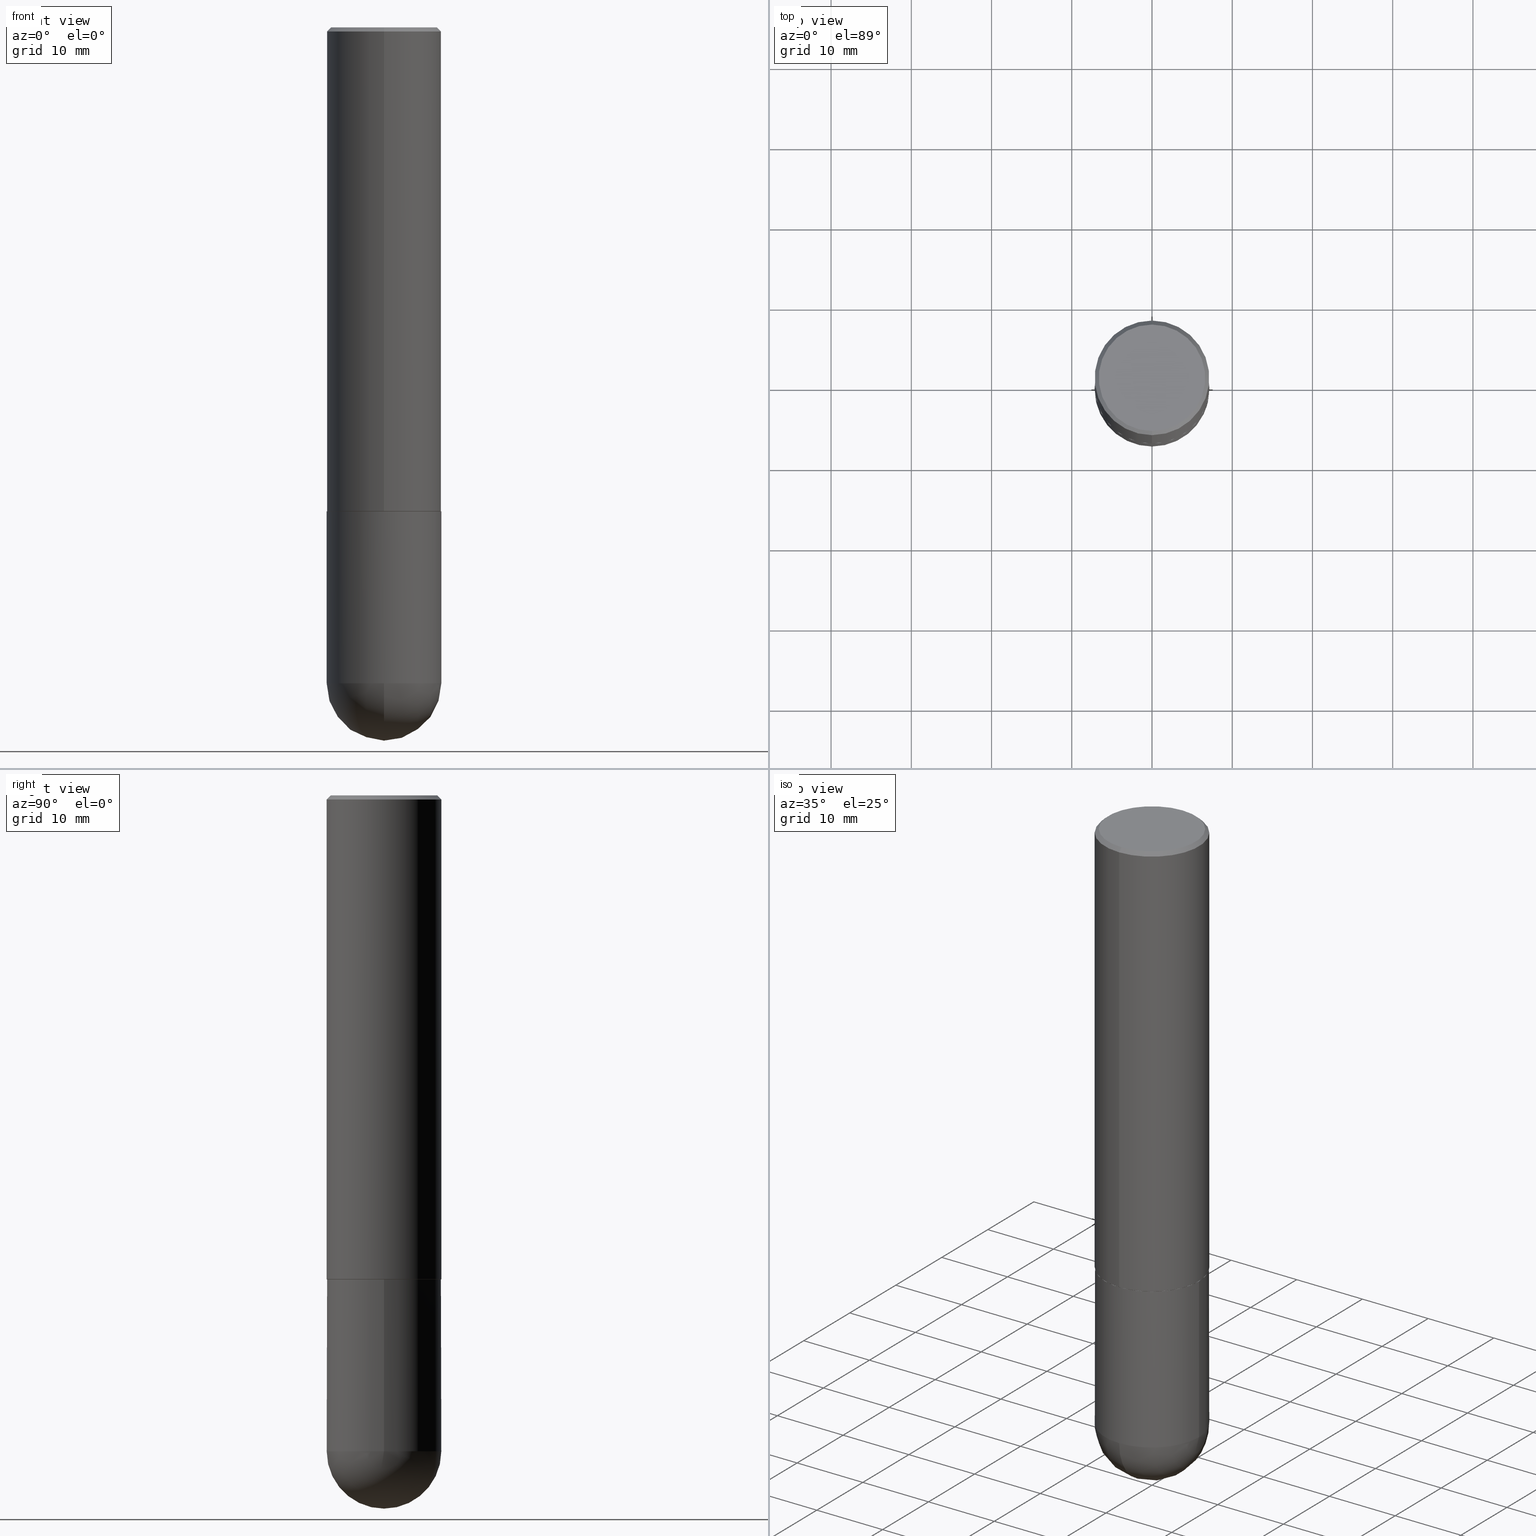
[diagram: canonical four-view strip — front | top / right | iso, engineering-drawing reading convention]
A machine part, canonical four-view strip (front | top / right | iso — engineering-drawing reading convention). The complete STEP part file that produces these views, byte-faithful:
ISO-10303-21;
HEADER;
FILE_DESCRIPTION (( 'STEP AP203' ),
    '1' );
FILE_NAME ('31162.STEP',
    '2024-02-21T16:49:02',
    ( '' ),
    ( '' ),
    'SwSTEP 2.0',
    'SolidWorks 2023',
    '' );
FILE_SCHEMA (( 'CONFIG_CONTROL_DESIGN' ));
ENDSEC;

DATA;
#1 = PERSON_AND_ORGANIZATION_ROLE ( 'design_supplier' ) ;
#2 = EDGE_CURVE ( 'NONE', #90, #55, #21, .T. ) ;
#3 = ORIENTED_EDGE ( 'NONE', *, *, #107, .F. ) ;
#4 = ADVANCED_FACE ( 'NONE', ( #151 ), #384, .T. ) ;
#5 = APPLICATION_PROTOCOL_DEFINITION ( 'international standard', 'config_control_design', 1994, #291 ) ;
#6 = DIRECTION ( 'NONE',  ( -6.982962677686266711E-15, -1.000000000000000000, 3.490694658571003593E-15 ) ) ;
#7 = APPROVAL ( #181, 'UNSPECIFIED' ) ;
#8 = CARTESIAN_POINT ( 'NONE',  ( 4.891942156115939858E-31, -6.981524113867461777E-17, -0.02000000000000006287 ) ) ;
#9 = VECTOR ( 'NONE', #208, 39.37007874015748143 ) ;
#10 = LOCAL_TIME ( 11, 49, 2.000000000000000000, #184 ) ;
#11 = CARTESIAN_POINT ( 'NONE',  ( -1.998401444325206042E-15, -0.2812500000000116573, -3.218749999999998668 ) ) ;
#12 = PRODUCT_DEFINITION_SHAPE ( 'NONE', 'NONE',  #361 ) ;
#13 = DIRECTION ( 'NONE',  ( -2.445468806185136597E-29, 3.491481338843145583E-15, 1.000000000000000000 ) ) ;
#14 = DIRECTION ( 'NONE',  ( -6.982962677686266711E-15, -1.000000000000000000, 3.490694658571003593E-15 ) ) ;
#15 = SECURITY_CLASSIFICATION ( '', '', #313 ) ;
#16 = CARTESIAN_POINT ( 'NONE',  ( 5.809181310387659224E-29, -8.290559885217581626E-15, -2.374999999999999556 ) ) ;
#17 = ADVANCED_FACE ( 'NONE', ( #88 ), #316, .T. ) ;
#18 = CARTESIAN_POINT ( 'NONE',  ( -1.929515061873242463E-15, -0.2812500000000000555, -0.01999999999999908101 ) ) ;
#19 = CARTESIAN_POINT ( 'NONE',  ( 4.891942156115939858E-31, -6.981524113867461777E-17, -0.02000000000000006287 ) ) ;
#20 = VERTEX_POINT ( 'NONE', #33 ) ;
#21 = CIRCLE ( 'NONE', #119, 0.2812499999999999445 ) ;
#22 = PRODUCT_DEFINITION_FORMATION_WITH_SPECIFIED_SOURCE ( 'ANY', '', #354, .NOT_KNOWN. ) ;
#23 = FACE_OUTER_BOUND ( 'NONE', #250, .T. ) ;
#24 = LOCAL_TIME ( 11, 49, 2.000000000000000000, #120 ) ;
#25 = CARTESIAN_POINT ( 'NONE',  ( 1.894128626322399214E-15, 0.2612499999999998157, -7.840941250697587073E-16 ) ) ;
#26 = DIRECTION ( 'NONE',  ( 4.937700262164543309E-15, 0.7071067811865444641, -0.7071067811865503483 ) ) ;
#27 = VERTEX_POINT ( 'NONE', #286 ) ;
#28 = VECTOR ( 'NONE', #81, 39.37007874015748143 ) ;
#29 = ORIENTED_EDGE ( 'NONE', *, *, #324, .T. ) ;
#30 = PERSON_AND_ORGANIZATION_ROLE ( 'classification_officer' ) ;
#31 = CARTESIAN_POINT ( 'NONE',  ( 0.000000000000000000, 0.000000000000000000, 0.000000000000000000 ) ) ;
#32 = DATE_TIME_ROLE ( 'classification_date' ) ;
#33 = CARTESIAN_POINT ( 'NONE',  ( -1.860910081895526737E-15, -0.2612499999999998157, 1.039829049678108414E-15 ) ) ;
#34 = EDGE_CURVE ( 'NONE', #411, #125, #171, .T. ) ;
#35 = DATE_AND_TIME ( #59, #10 ) ;
#36 = ORIENTED_EDGE ( 'NONE', *, *, #210, .F. ) ;
#37 = AXIS2_PLACEMENT_3D ( 'NONE', #236, #199, #79 ) ;
#38 = EDGE_LOOP ( 'NONE', ( #344, #252 ) ) ;
#39 = PLANE ( 'NONE',  #172 ) ;
#40 = DIRECTION ( 'NONE',  ( 1.000000000000000000, -6.982962677686269866E-15, 0.000000000000000000 ) ) ;
#41 = ADVANCED_FACE ( 'NONE', ( #349 ), #132, .T. ) ;
#42 = AXIS2_PLACEMENT_3D ( 'NONE', #85, #211, #104 ) ;
#43 = LOCAL_TIME ( 11, 49, 2.000000000000000000, #281 ) ;
#44 = APPROVAL_ROLE ( '' ) ;
#45 = DIRECTION ( 'NONE',  ( -6.982962677686265133E-15, -1.000000000000000000, 3.885294924322504533E-15 ) ) ;
#46 = DIRECTION ( 'NONE',  ( -2.445468806185136597E-29, 3.491481338843145583E-15, 1.000000000000000000 ) ) ;
#47 = CARTESIAN_POINT ( 'NONE',  ( 0.2812500000000000555, -1.963958253099262907E-15, 1.371424718192607012E-29 ) ) ;
#48 = CC_DESIGN_DATE_AND_TIME_ASSIGNMENT ( #87, #372, ( #361 ) ) ;
#49 = DIRECTION ( 'NONE',  ( -2.445468806185136597E-29, 3.491481338843145583E-15, 1.000000000000000000 ) ) ;
#50 = FACE_OUTER_BOUND ( 'NONE', #255, .T. ) ;
#51 = EDGE_CURVE ( 'NONE', #411, #319, #69, .T. ) ;
#52 = CYLINDRICAL_SURFACE ( 'NONE', #195, 0.2812500000000001110 ) ;
#53 = VECTOR ( 'NONE', #365, 39.37007874015748143 ) ;
#54 = DIRECTION ( 'NONE',  ( 6.982962677686266711E-15, 1.000000000000000000, -3.490694658571003593E-15 ) ) ;
#55 = VERTEX_POINT ( 'NONE', #292 ) ;
#56 = CARTESIAN_POINT ( 'NONE',  ( -1.963958253099263301E-15, -0.2812500000000001110, 9.817768285126090044E-16 ) ) ;
#57 = LENGTH_MEASURE_WITH_UNIT ( LENGTH_MEASURE( 0.02539999999999999897 ), #343 );
#58 = EDGE_CURVE ( 'NONE', #374, #209, #139, .T. ) ;
#59 = CALENDAR_DATE ( 2024, 21, 2 ) ;
#60 = AXIS2_PLACEMENT_3D ( 'NONE', #277, #49, #166 ) ;
#61 = ORIENTED_EDGE ( 'NONE', *, *, #329, .F. ) ;
#62 = COORDINATED_UNIVERSAL_TIME_OFFSET ( 5, 0, .BEHIND. ) ;
#63 = CARTESIAN_POINT ( 'NONE',  ( 4.891942156115939858E-31, -6.981524113867461777E-17, -0.02000000000000006287 ) ) ;
#64 = EDGE_CURVE ( 'NONE', #55, #90, #364, .T. ) ;
#65 = DIRECTION ( 'NONE',  ( -4.851104656540959542E-15, -0.7071067811865493491, -0.7071067811865454633 ) ) ;
#66 = CARTESIAN_POINT ( 'NONE',  ( 7.540232941994521053E-29, -1.171238792754142562E-14, -3.218749999999999556 ) ) ;
#67 = ORIENTED_EDGE ( 'NONE', *, *, #218, .F. ) ;
#68 = AXIS2_PLACEMENT_3D ( 'NONE', #134, #367, #175 ) ;
#69 = LINE ( 'NONE', #163, #299 ) ;
#70 = DIRECTION ( 'NONE',  ( -6.982962677686265922E-15, -1.000000000000000000, 3.899158599342391639E-15 ) ) ;
#71 = CC_DESIGN_PERSON_AND_ORGANIZATION_ASSIGNMENT ( #405, #1, ( #22 ) ) ;
#72 = DIRECTION ( 'NONE',  ( -2.445971078057962310E-29, 3.490762056933719721E-15, 1.000000000000000000 ) ) ;
#73 = AXIS2_PLACEMENT_3D ( 'NONE', #243, #335, #370 ) ;
#74 = CARTESIAN_POINT ( 'NONE',  ( 5.806735339309601077E-29, -8.287069123160647874E-15, -2.373999999999999222 ) ) ;
#75 = EDGE_CURVE ( 'NONE', #146, #138, #131, .T. ) ;
#76 = CARTESIAN_POINT ( 'NONE',  ( 5.809181310387659224E-29, -8.290559885217581626E-15, -2.374999999999999556 ) ) ;
#77 = CARTESIAN_POINT ( 'NONE',  ( 1.998401444325312144E-15, 0.2812499999999919509, -2.374000000000000554 ) ) ;
#78 = AXIS2_PLACEMENT_3D ( 'NONE', #108, #276, #338 ) ;
#79 = DIRECTION ( 'NONE',  ( 1.000000000000000000, -6.982962677686268288E-15, 0.000000000000000000 ) ) ;
#80 = EDGE_LOOP ( 'NONE', ( #135, #314, #200, #247 ) ) ;
#81 = DIRECTION ( 'NONE',  ( -2.445971078057962310E-29, 3.490762056933720116E-15, 1.000000000000000000 ) ) ;
#82 = ORIENTED_EDGE ( 'NONE', *, *, #167, .F. ) ;
#83 = AXIS2_PLACEMENT_3D ( 'NONE', #122, #253, #380 ) ;
#84 =( GEOMETRIC_REPRESENTATION_CONTEXT ( 3 ) GLOBAL_UNCERTAINTY_ASSIGNED_CONTEXT ( ( #201 ) ) GLOBAL_UNIT_ASSIGNED_CONTEXT ( ( #123, #117, #93 ) ) REPRESENTATION_CONTEXT ( 'NONE', 'WORKASPACE' ) );
#85 = CARTESIAN_POINT ( 'NONE',  ( 5.809181310387659224E-29, -8.290559885217581626E-15, -2.374999999999999556 ) ) ;
#86 = APPROVAL_ROLE ( '' ) ;
#87 = DATE_AND_TIME ( #249, #43 ) ;
#88 = FACE_OUTER_BOUND ( 'NONE', #278, .T. ) ;
#89 = PERSON_AND_ORGANIZATION ( #274, #404 ) ;
#90 = VERTEX_POINT ( 'NONE', #301 ) ;
#91 = CALENDAR_DATE ( 2024, 21, 2 ) ;
#92 = ORIENTED_EDGE ( 'NONE', *, *, #64, .F. ) ;
#93 =( NAMED_UNIT ( * ) SI_UNIT ( $, .STERADIAN. ) SOLID_ANGLE_UNIT ( ) );
#94 = ORIENTED_EDGE ( 'NONE', *, *, #64, .T. ) ;
#95 = EDGE_LOOP ( 'NONE', ( #212, #115, #347, #61 ) ) ;
#96 = DIRECTION ( 'NONE',  ( 1.000000000000000000, -6.982962677686268288E-15, 0.000000000000000000 ) ) ;
#97 = DIRECTION ( 'NONE',  ( 6.982962677686265133E-15, 1.000000000000000000, 0.000000000000000000 ) ) ;
#98 = DIRECTION ( 'NONE',  ( -6.982962677686265133E-15, -1.000000000000000000, 3.885294924322504533E-15 ) ) ;
#99 = CLOSED_SHELL ( 'NONE', ( #259, #17, #183, #369, #244, #173, #352, #293 ) ) ;
#100 = EDGE_CURVE ( 'NONE', #125, #303, #264, .T. ) ;
#101 = CIRCLE ( 'NONE', #214, 0.2812500000000002220 ) ;
#102 = CARTESIAN_POINT ( 'NONE',  ( 5.807988414689698296E-29, -8.292268179752468540E-15, -2.374999999999999556 ) ) ;
#103 = DIRECTION ( 'NONE',  ( -2.445468806185136877E-29, 3.491481338843145188E-15, 1.000000000000000000 ) ) ;
#104 = DIRECTION ( 'NONE',  ( -6.982962677686265922E-15, -1.000000000000000000, 3.490762056933720116E-15 ) ) ;
#105 = ORIENTED_EDGE ( 'NONE', *, *, #340, .T. ) ;
#106 = VECTOR ( 'NONE', #65, 39.37007874015748854 ) ;
#107 = EDGE_CURVE ( 'NONE', #27, #368, #280, .T. ) ;
#108 = CARTESIAN_POINT ( 'NONE',  ( 7.540232941994521053E-29, -1.171238792754142562E-14, -3.218749999999999556 ) ) ;
#109 = ORIENTED_EDGE ( 'NONE', *, *, #58, .F. ) ;
#110 = FACE_OUTER_BOUND ( 'NONE', #290, .T. ) ;
#111 = FACE_OUTER_BOUND ( 'NONE', #176, .T. ) ;
#112 = ORIENTED_EDGE ( 'NONE', *, *, #190, .T. ) ;
#113 = CIRCLE ( 'NONE', #308, 0.2612499999999998157 ) ;
#114 = CARTESIAN_POINT ( 'NONE',  ( 7.871352719908407300E-29, -1.123820555940137375E-14, -3.218749999999999556 ) ) ;
#115 = ORIENTED_EDGE ( 'NONE', *, *, #407, .T. ) ;
#116 = ORIENTED_EDGE ( 'NONE', *, *, #75, .T. ) ;
#117 =( NAMED_UNIT ( * ) PLANE_ANGLE_UNIT ( ) SI_UNIT ( $, .RADIAN. ) );
#118 = ORIENTED_EDGE ( 'NONE', *, *, #193, .F. ) ;
#119 = AXIS2_PLACEMENT_3D ( 'NONE', #63, #251, #6 ) ;
#120 = COORDINATED_UNIVERSAL_TIME_OFFSET ( 5, 0, .BEHIND. ) ;
#121 = CIRCLE ( 'NONE', #287, 0.2612499999999998157 ) ;
#122 = CARTESIAN_POINT ( 'NONE',  ( 5.809181310387659224E-29, -8.290559885217581626E-15, -2.374999999999999556 ) ) ;
#123 =( CONVERSION_BASED_UNIT ( 'INCH', #57 ) LENGTH_UNIT ( ) NAMED_UNIT ( #136 ) );
#124 = ORIENTED_EDGE ( 'NONE', *, *, #227, .F. ) ;
#125 = VERTEX_POINT ( 'NONE', #325 ) ;
#126 = ADVANCED_FACE ( 'NONE', ( #393 ), #39, .F. ) ;
#127 = AXIS2_PLACEMENT_3D ( 'NONE', #330, #191, #161 ) ;
#128 = DIRECTION ( 'NONE',  ( -6.982962677686265133E-15, -1.000000000000000000, 3.490762056933719327E-15 ) ) ;
#129 = CC_DESIGN_APPROVAL ( #7, ( #22 ) ) ;
#130 = CARTESIAN_POINT ( 'NONE',  ( -3.127601146206782890E-45, 4.463548857278161624E-31, 1.278674623041748289E-16 ) ) ;
#131 = LINE ( 'NONE', #47, #179 ) ;
#132 = CYLINDRICAL_SURFACE ( 'NONE', #127, 0.2812500000000000555 ) ;
#133 = DIRECTION ( 'NONE',  ( -2.445971078057962310E-29, 3.490762056933719721E-15, 1.000000000000000000 ) ) ;
#134 = CARTESIAN_POINT ( 'NONE',  ( 7.540232941994521053E-29, -1.171238792754142562E-14, -3.218749999999999556 ) ) ;
#135 = ORIENTED_EDGE ( 'NONE', *, *, #51, .F. ) ;
#136 = DIMENSIONAL_EXPONENTS ( 1.000000000000000000, 0.000000000000000000, 0.000000000000000000, 0.000000000000000000, 0.000000000000000000, 0.000000000000000000, 0.000000000000000000 ) ;
#137 = DIRECTION ( 'NONE',  ( 2.445971078057962310E-29, -3.490762056933719721E-15, -1.000000000000000000 ) ) ;
#138 = VERTEX_POINT ( 'NONE', #389 ) ;
#139 = CIRCLE ( 'NONE', #270, 0.2812500000000000555 ) ;
#140 = APPROVAL_PERSON_ORGANIZATION ( #348, #402, #44 ) ;
#141 = CARTESIAN_POINT ( 'NONE',  ( 1.998401444325282167E-15, 0.2812500000000001110, -9.817768285126090044E-16 ) ) ;
#142 = LINE ( 'NONE', #334, #164 ) ;
#143 = EDGE_CURVE ( 'NONE', #20, #289, #121, .T. ) ;
#144 = ORIENTED_EDGE ( 'NONE', *, *, #329, .T. ) ;
#145 = CYLINDRICAL_SURFACE ( 'NONE', #60, 0.2812500000000000555 ) ;
#146 = VERTEX_POINT ( 'NONE', #157 ) ;
#147 = PERSON_AND_ORGANIZATION ( #274, #404 ) ;
#148 = ORIENTED_EDGE ( 'NONE', *, *, #317, .T. ) ;
#149 = ORIENTED_EDGE ( 'NONE', *, *, #167, .T. ) ;
#150 = CC_DESIGN_PERSON_AND_ORGANIZATION_ASSIGNMENT ( #315, #30, ( #15 ) ) ;
#151 = FACE_OUTER_BOUND ( 'NONE', #155, .T. ) ;
#152 = PERSON_AND_ORGANIZATION_ROLE ( 'creator' ) ;
#153 = AXIS2_PLACEMENT_3D ( 'NONE', #169, #269, #403 ) ;
#154 = ORIENTED_EDGE ( 'NONE', *, *, #203, .T. ) ;
#155 = EDGE_LOOP ( 'NONE', ( #3, #105, #109, #226 ) ) ;
#156 = DIRECTION ( 'NONE',  ( -2.445971078057962310E-29, 3.490762056933719721E-15, 1.000000000000000000 ) ) ;
#157 = CARTESIAN_POINT ( 'NONE',  ( 0.2812500000000000555, -1.172919512267618602E-14, -3.218749999999999556 ) ) ;
#158 = AXIS2_PLACEMENT_3D ( 'NONE', #16, #328, #327 ) ;
#159 = COORDINATED_UNIVERSAL_TIME_OFFSET ( 5, 0, .BEHIND. ) ;
#160 = DIRECTION ( 'NONE',  ( 2.438088387897960049E-29, -3.491481338843145188E-15, -1.000000000000000000 ) ) ;
#161 = DIRECTION ( 'NONE',  ( 1.000000000000000000, -6.982962677686266711E-15, 4.876176775795935232E-29 ) ) ;
#162 = APPROVAL_STATUS ( 'not_yet_approved' ) ;
#163 = CARTESIAN_POINT ( 'NONE',  ( 1.991296016967738351E-15, 0.2802499999999917280, -2.375000000000000888 ) ) ;
#164 = VECTOR ( 'NONE', #26, 39.37007874015748854 ) ;
#165 = LOCAL_TIME ( 11, 49, 2.000000000000000000, #62 ) ;
#166 = DIRECTION ( 'NONE',  ( 1.000000000000000000, -6.982962677686266711E-15, 4.876176775795935232E-29 ) ) ;
#167 = EDGE_CURVE ( 'NONE', #146, #368, #359, .T. ) ;
#168 = SPHERICAL_SURFACE ( 'NONE', #78, 0.2812500000000003331 ) ;
#169 = CARTESIAN_POINT ( 'NONE',  ( 5.809181310387659224E-29, -8.290559885217581626E-15, -2.374999999999999556 ) ) ;
#170 = EDGE_LOOP ( 'NONE', ( #399, #36, #144, #94 ) ) ;
#171 = CIRCLE ( 'NONE', #83, 0.2802499999999999991 ) ;
#172 = AXIS2_PLACEMENT_3D ( 'NONE', #234, #160, #388 ) ;
#173 = ADVANCED_FACE ( 'NONE', ( #233 ), #300, .T. ) ;
#174 = CARTESIAN_POINT ( 'NONE',  ( -0.2812500000000000555, -7.766835425251639371E-15, -3.218749999999999556 ) ) ;
#175 = DIRECTION ( 'NONE',  ( -7.105427357601001859E-15, -1.000000000000000000, 0.000000000000000000 ) ) ;
#176 = EDGE_LOOP ( 'NONE', ( #312, #339, #282, #116, #118 ) ) ;
#177 = PERSON_AND_ORGANIZATION ( #274, #404 ) ;
#178 = ORIENTED_EDGE ( 'NONE', *, *, #340, .F. ) ;
#179 = VECTOR ( 'NONE', #103, 39.37007874015748143 ) ;
#180 = CIRCLE ( 'NONE', #37, 0.2812500000000000555 ) ;
#181 = APPROVAL_STATUS ( 'not_yet_approved' ) ;
#182 = DIRECTION ( 'NONE',  ( 6.982962677686265922E-15, 1.000000000000000000, -3.885294924322502955E-15 ) ) ;
#183 = ADVANCED_FACE ( 'NONE', ( #202 ), #197, .T. ) ;
#184 = COORDINATED_UNIVERSAL_TIME_OFFSET ( 5, 0, .BEHIND. ) ;
#185 = DIRECTION ( 'NONE',  ( -2.445971078057962310E-29, 3.490762056933719721E-15, 1.000000000000000000 ) ) ;
#186 = DIRECTION ( 'NONE',  ( 1.000000000000000000, 0.000000000000000000, 0.000000000000000000 ) ) ;
#187 = ORIENTED_EDGE ( 'NONE', *, *, #279, .T. ) ;
#188 = DATE_AND_TIME ( #228, #165 ) ;
#189 = AXIS2_PLACEMENT_3D ( 'NONE', #258, #295, #96 ) ;
#190 = EDGE_CURVE ( 'NONE', #125, #411, #333, .T. ) ;
#191 = DIRECTION ( 'NONE',  ( -2.445468806185136597E-29, 3.491481338843145583E-15, 1.000000000000000000 ) ) ;
#192 = DIRECTION ( 'NONE',  ( 2.445971078057962310E-29, -3.490762056933719721E-15, -1.000000000000000000 ) ) ;
#193 = EDGE_CURVE ( 'NONE', #382, #138, #235, .T. ) ;
#194 = DESIGN_CONTEXT ( 'detailed design', #304, 'design' ) ;
#195 = AXIS2_PLACEMENT_3D ( 'NONE', #268, #341, #239 ) ;
#196 = DIRECTION ( 'NONE',  ( -2.445971078057962310E-29, 3.490762056933719721E-15, 1.000000000000000000 ) ) ;
#197 = CONICAL_SURFACE ( 'NONE', #377, 0.2812499999999999445, 0.7853981633974476129 ) ;
#198 = PRODUCT_RELATED_PRODUCT_CATEGORY ( 'detail', '', ( #354 ) ) ;
#199 = DIRECTION ( 'NONE',  ( -2.445468806185136597E-29, 3.491481338843145583E-15, 1.000000000000000000 ) ) ;
#200 = ORIENTED_EDGE ( 'NONE', *, *, #100, .T. ) ;
#201 = UNCERTAINTY_MEASURE_WITH_UNIT (LENGTH_MEASURE( 1.000000000000000082E-05 ), #123, 'distance_accuracy_value', 'NONE');
#202 = FACE_OUTER_BOUND ( 'NONE', #95, .T. ) ;
#203 = EDGE_CURVE ( 'NONE', #319, #303, #101, .T. ) ;
#204 = LINE ( 'NONE', #141, #9 ) ;
#205 = AXIS2_PLACEMENT_3D ( 'NONE', #356, #238, #97 ) ;
#206 = FACE_OUTER_BOUND ( 'NONE', #219, .T. ) ;
#207 = ORIENTED_EDGE ( 'NONE', *, *, #143, .T. ) ;
#208 = DIRECTION ( 'NONE',  ( -2.445971078057962310E-29, 3.490762056933720116E-15, 1.000000000000000000 ) ) ;
#209 = VERTEX_POINT ( 'NONE', #11 ) ;
#210 = EDGE_CURVE ( 'NONE', #289, #20, #113, .T. ) ;
#211 = DIRECTION ( 'NONE',  ( -2.445971078057961469E-29, 3.490762056933720116E-15, 1.000000000000000000 ) ) ;
#212 = ORIENTED_EDGE ( 'NONE', *, *, #143, .F. ) ;
#213 = VECTOR ( 'NONE', #392, 39.37007874015748143 ) ;
#214 = AXIS2_PLACEMENT_3D ( 'NONE', #237, #133, #98 ) ;
#215 = FACE_OUTER_BOUND ( 'NONE', #353, .T. ) ;
#216 = APPROVAL_DATE_TIME ( #35, #7 ) ;
#217 = PERSON_AND_ORGANIZATION ( #274, #404 ) ;
#218 = EDGE_CURVE ( 'NONE', #303, #319, #397, .T. ) ;
#219 = EDGE_LOOP ( 'NONE', ( #178, #310, #82, #124 ) ) ;
#220 = CC_DESIGN_DATE_AND_TIME_ASSIGNMENT ( #318, #32, ( #15 ) ) ;
#221 = ADVANCED_BREP_SHAPE_REPRESENTATION ( '31162', ( #242, #376, #322 ), #84 ) ;
#222 = AXIS2_PLACEMENT_3D ( 'NONE', #31, #185, #321 ) ;
#223 = LOCAL_TIME ( 11, 49, 2.000000000000000000, #159 ) ;
#224 = APPLICATION_PROTOCOL_DEFINITION ( 'international standard', 'config_control_design', 1994, #304 ) ;
#225 = ORIENTED_EDGE ( 'NONE', *, *, #266, .T. ) ;
#226 = ORIENTED_EDGE ( 'NONE', *, *, #279, .F. ) ;
#227 = EDGE_CURVE ( 'NONE', #209, #146, #180, .T. ) ;
#228 = CALENDAR_DATE ( 2024, 21, 2 ) ;
#229 = ORIENTED_EDGE ( 'NONE', *, *, #34, .F. ) ;
#230 = CC_DESIGN_PERSON_AND_ORGANIZATION_ASSIGNMENT ( #147, #283, ( #361 ) ) ;
#231 = APPROVAL_PERSON_ORGANIZATION ( #217, #375, #381 ) ;
#232 = ORIENTED_EDGE ( 'NONE', *, *, #218, .T. ) ;
#233 = FACE_OUTER_BOUND ( 'NONE', #80, .T. ) ;
#234 = CARTESIAN_POINT ( 'NONE',  ( 1.963958253099320494E-15, 0.2812499999999917288, -2.375000000000000444 ) ) ;
#235 = CIRCLE ( 'NONE', #378, 0.2812500000000000000 ) ;
#236 = CARTESIAN_POINT ( 'NONE',  ( 7.871352719908407300E-29, -1.123820555940137375E-14, -3.218749999999999556 ) ) ;
#237 = CARTESIAN_POINT ( 'NONE',  ( 5.806735339309601077E-29, -8.287069123160647874E-15, -2.373999999999999222 ) ) ;
#238 = DIRECTION ( 'NONE',  ( 1.000000000000000000, -6.982962677686265922E-15, 4.883557194083112340E-29 ) ) ;
#239 = DIRECTION ( 'NONE',  ( -6.982962677686266711E-15, -1.000000000000000000, 3.490762056933719721E-15 ) ) ;
#240 = ORIENTED_EDGE ( 'NONE', *, *, #383, .F. ) ;
#241 = CIRCLE ( 'NONE', #68, 0.2812500000000003331 ) ;
#242 = MANIFOLD_SOLID_BREP ( 'Body-Move/Copy2[1]', #345 ) ;
#243 = CARTESIAN_POINT ( 'NONE',  ( 1.824298999545535522E-15, 0.2612499999999998157, -8.480278562218461340E-16 ) ) ;
#244 = ADVANCED_FACE ( 'NONE', ( #215 ), #52, .T. ) ;
#245 = CARTESIAN_POINT ( 'NONE',  ( -0.2812500000000000555, 1.998401444325282167E-15, -1.383450494134192269E-29 ) ) ;
#246 = PLANE ( 'NONE',  #73 ) ;
#247 = ORIENTED_EDGE ( 'NONE', *, *, #203, .F. ) ;
#248 = CIRCLE ( 'NONE', #263, 0.2812500000000000000 ) ;
#249 = CALENDAR_DATE ( 2024, 21, 2 ) ;
#250 = EDGE_LOOP ( 'NONE', ( #373, #229 ) ) ;
#251 = DIRECTION ( 'NONE',  ( -2.445971078057962310E-29, 3.490762056933719721E-15, 1.000000000000000000 ) ) ;
#252 = ORIENTED_EDGE ( 'NONE', *, *, #193, .T. ) ;
#253 = DIRECTION ( 'NONE',  ( -2.445971078057962310E-29, 3.490762056933719721E-15, 1.000000000000000000 ) ) ;
#254 = ORIENTED_EDGE ( 'NONE', *, *, #51, .T. ) ;
#255 = EDGE_LOOP ( 'NONE', ( #112, #254, #67, #337 ) ) ;
#256 = CIRCLE ( 'NONE', #371, 0.2812500000000000555 ) ;
#257 = CC_DESIGN_APPROVAL ( #375, ( #361 ) ) ;
#258 = CARTESIAN_POINT ( 'NONE',  ( 7.871352719908407300E-29, -1.123820555940137375E-14, -3.218749999999999556 ) ) ;
#259 = ADVANCED_FACE ( 'NONE', ( #50 ), #351, .T. ) ;
#260 = DIRECTION ( 'NONE',  ( -2.445971078057962310E-29, 3.490762056933719721E-15, 1.000000000000000000 ) ) ;
#261 = DIRECTION ( 'NONE',  ( -2.445971078057962310E-29, 3.490762056933719721E-15, 1.000000000000000000 ) ) ;
#262 = CALENDAR_DATE ( 2024, 21, 2 ) ;
#263 = AXIS2_PLACEMENT_3D ( 'NONE', #401, #309, #311 ) ;
#264 = LINE ( 'NONE', #362, #213 ) ;
#265 = APPROVAL_PERSON_ORGANIZATION ( #177, #7, #86 ) ;
#266 = EDGE_CURVE ( 'NONE', #319, #55, #204, .T. ) ;
#267 = DIRECTION ( 'NONE',  ( 1.000000000000000000, -6.982962677686268288E-15, 0.000000000000000000 ) ) ;
#268 = CARTESIAN_POINT ( 'NONE',  ( 0.000000000000000000, 0.000000000000000000, 0.000000000000000000 ) ) ;
#269 = DIRECTION ( 'NONE',  ( -2.445971078057962310E-29, 3.490762056933719721E-15, 1.000000000000000000 ) ) ;
#270 = AXIS2_PLACEMENT_3D ( 'NONE', #296, #13, #267 ) ;
#271 = ORIENTED_EDGE ( 'NONE', *, *, #210, .T. ) ;
#272 = AXIS2_PLACEMENT_3D ( 'NONE', #19, #137, #54 ) ;
#273 = CC_DESIGN_SECURITY_CLASSIFICATION ( #15, ( #22 ) ) ;
#274 = PERSON ( 'UNSPECIFIED', 'UNSPECIFIED', 'UNSPECIFIED', ('UNSPECIFIED'), ('UNSPECIFIED'), ('UNSPECIFIED') ) ;
#275 = DIRECTION ( 'NONE',  ( -2.445468806185136597E-29, 3.491481338843145583E-15, 1.000000000000000000 ) ) ;
#276 = DIRECTION ( 'NONE',  ( -1.000000000000000000, 6.982962677686265922E-15, -4.883557194083112901E-29 ) ) ;
#277 = CARTESIAN_POINT ( 'NONE',  ( 0.000000000000000000, 0.000000000000000000, 0.000000000000000000 ) ) ;
#278 = EDGE_LOOP ( 'NONE', ( #232, #225, #323, #406 ) ) ;
#279 = EDGE_CURVE ( 'NONE', #368, #374, #256, .T. ) ;
#280 = CIRCLE ( 'NONE', #205, 0.2812500000000003331 ) ;
#281 = COORDINATED_UNIVERSAL_TIME_OFFSET ( 5, 0, .BEHIND. ) ;
#282 = ORIENTED_EDGE ( 'NONE', *, *, #227, .T. ) ;
#283 = PERSON_AND_ORGANIZATION_ROLE ( 'creator' ) ;
#284 = ORIENTED_EDGE ( 'NONE', *, *, #75, .F. ) ;
#285 = DIRECTION ( 'NONE',  ( 0.000000000000000000, 0.000000000000000000, 1.000000000000000000 ) ) ;
#286 = CARTESIAN_POINT ( 'NONE',  ( 8.240046819675677659E-29, -1.267714545847805119E-14, -3.500000000000000000 ) ) ;
#287 = AXIS2_PLACEMENT_3D ( 'NONE', #390, #156, #128 ) ;
#288 = PERSON_AND_ORGANIZATION_ROLE ( 'design_owner' ) ;
#289 = VERTEX_POINT ( 'NONE', #25 ) ;
#290 = EDGE_LOOP ( 'NONE', ( #271, #207 ) ) ;
#291 = APPLICATION_CONTEXT ( 'configuration controlled 3d designs of mechanical parts and assemblies' ) ;
#292 = CARTESIAN_POINT ( 'NONE',  ( 1.963958253099262512E-15, 0.2812499999999998890, -0.02000000000000104472 ) ) ;
#293 = ADVANCED_FACE ( 'NONE', ( #110 ), #246, .F. ) ;
#294 = CONICAL_SURFACE ( 'NONE', #272, 0.2812499999999999445, 0.7853981633974476129 ) ;
#295 = DIRECTION ( 'NONE',  ( -2.445468806185136597E-29, 3.491481338843145583E-15, 1.000000000000000000 ) ) ;
#296 = CARTESIAN_POINT ( 'NONE',  ( 7.871352719908407300E-29, -1.123820555940137375E-14, -3.218749999999999556 ) ) ;
#297 = APPROVAL_DATE_TIME ( #331, #402 ) ;
#298 = DIRECTION ( 'NONE',  ( 5.024295867787803643E-15, 0.7071067811865135999, 0.7071067811865812125 ) ) ;
#299 = VECTOR ( 'NONE', #298, 39.37007874015748854 ) ;
#300 = CONICAL_SURFACE ( 'NONE', #412, 0.2802499999999999991, 0.7853981633973970977 ) ;
#301 = CARTESIAN_POINT ( 'NONE',  ( -1.929515061873242463E-15, -0.2812500000000000555, -0.01999999999999908101 ) ) ;
#302 = LINE ( 'NONE', #18, #106 ) ;
#303 = VERTEX_POINT ( 'NONE', #396 ) ;
#304 = APPLICATION_CONTEXT ( 'configuration controlled 3d designs of mechanical parts and assemblies' ) ;
#305 = FACE_OUTER_BOUND ( 'NONE', #170, .T. ) ;
#306 = ORIENTED_EDGE ( 'NONE', *, *, #266, .F. ) ;
#307 = PLANE ( 'NONE',  #42 ) ;
#308 = AXIS2_PLACEMENT_3D ( 'NONE', #130, #261, #357 ) ;
#309 = DIRECTION ( 'NONE',  ( -2.445468806185136597E-29, 3.491481338843145583E-15, 1.000000000000000000 ) ) ;
#310 = ORIENTED_EDGE ( 'NONE', *, *, #107, .T. ) ;
#311 = DIRECTION ( 'NONE',  ( 1.000000000000000000, -6.982962677686269866E-15, 0.000000000000000000 ) ) ;
#312 = ORIENTED_EDGE ( 'NONE', *, *, #324, .F. ) ;
#313 = SECURITY_CLASSIFICATION_LEVEL ( 'unclassified' ) ;
#314 = ORIENTED_EDGE ( 'NONE', *, *, #34, .T. ) ;
#315 = PERSON_AND_ORGANIZATION ( #274, #404 ) ;
#316 = CYLINDRICAL_SURFACE ( 'NONE', #222, 0.2812500000000001110 ) ;
#317 = EDGE_CURVE ( 'NONE', #303, #90, #336, .T. ) ;
#318 = DATE_AND_TIME ( #91, #24 ) ;
#319 = VERTEX_POINT ( 'NONE', #77 ) ;
#320 = CARTESIAN_POINT ( 'NONE',  ( 0.000000000000000000, 0.000000000000000000, 0.000000000000000000 ) ) ;
#321 = DIRECTION ( 'NONE',  ( -6.982962677686266711E-15, -1.000000000000000000, 3.490762056933719721E-15 ) ) ;
#322 = AXIS2_PLACEMENT_3D ( 'NONE', #320, #285, #186 ) ;
#323 = ORIENTED_EDGE ( 'NONE', *, *, #2, .F. ) ;
#324 = EDGE_CURVE ( 'NONE', #374, #382, #398, .T. ) ;
#325 = CARTESIAN_POINT ( 'NONE',  ( -1.956975290421518122E-15, -0.2802500000000083258, -2.374999999999998668 ) ) ;
#326 = CC_DESIGN_PERSON_AND_ORGANIZATION_ASSIGNMENT ( #89, #288, ( #354 ) ) ;
#327 = DIRECTION ( 'NONE',  ( -6.982962677686265922E-15, -1.000000000000000000, 3.899158599342391639E-15 ) ) ;
#328 = DIRECTION ( 'NONE',  ( -2.445971078057962310E-29, 3.490762056933719721E-15, 1.000000000000000000 ) ) ;
#329 = EDGE_CURVE ( 'NONE', #289, #55, #142, .T. ) ;
#330 = CARTESIAN_POINT ( 'NONE',  ( 0.000000000000000000, 0.000000000000000000, 0.000000000000000000 ) ) ;
#331 = DATE_AND_TIME ( #262, #223 ) ;
#332 = DIRECTION ( 'NONE',  ( 6.982962677686266711E-15, 1.000000000000000000, -3.490694658571003593E-15 ) ) ;
#333 = CIRCLE ( 'NONE', #158, 0.2802499999999999991 ) ;
#334 = CARTESIAN_POINT ( 'NONE',  ( 1.963958253099262512E-15, 0.2812499999999998890, -0.02000000000000104472 ) ) ;
#335 = DIRECTION ( 'NONE',  ( 2.445971078057961469E-29, -3.490762056933720116E-15, -1.000000000000000000 ) ) ;
#336 = LINE ( 'NONE', #56, #28 ) ;
#337 = ORIENTED_EDGE ( 'NONE', *, *, #100, .F. ) ;
#338 = DIRECTION ( 'NONE',  ( 6.982962677686265922E-15, 1.000000000000000000, -3.885294924322502955E-15 ) ) ;
#339 = ORIENTED_EDGE ( 'NONE', *, *, #58, .T. ) ;
#340 = EDGE_CURVE ( 'NONE', #27, #209, #241, .T. ) ;
#341 = DIRECTION ( 'NONE',  ( -2.445971078057962310E-29, 3.490762056933719721E-15, 1.000000000000000000 ) ) ;
#342 = PERSON_AND_ORGANIZATION ( #274, #404 ) ;
#343 =( LENGTH_UNIT ( ) NAMED_UNIT ( * ) SI_UNIT ( $, .METRE. ) );
#344 = ORIENTED_EDGE ( 'NONE', *, *, #383, .T. ) ;
#345 = CLOSED_SHELL ( 'NONE', ( #41, #4, #358, #126, #394 ) ) ;
#346 = APPROVAL_STATUS ( 'not_yet_approved' ) ;
#347 = ORIENTED_EDGE ( 'NONE', *, *, #2, .T. ) ;
#348 = PERSON_AND_ORGANIZATION ( #274, #404 ) ;
#349 = FACE_OUTER_BOUND ( 'NONE', #350, .T. ) ;
#350 = EDGE_LOOP ( 'NONE', ( #187, #29, #240, #284, #149 ) ) ;
#351 = CONICAL_SURFACE ( 'NONE', #153, 0.2802499999999999991, 0.7853981633973970977 ) ;
#352 = ADVANCED_FACE ( 'NONE', ( #23 ), #307, .F. ) ;
#353 = EDGE_LOOP ( 'NONE', ( #306, #154, #148, #92 ) ) ;
#354 = PRODUCT ( '31162', '31162', '', ( #379 ) ) ;
#355 = SHAPE_DEFINITION_REPRESENTATION ( #12, #221 ) ;
#356 = CARTESIAN_POINT ( 'NONE',  ( 7.540232941994521053E-29, -1.171238792754142562E-14, -3.218749999999999556 ) ) ;
#357 = DIRECTION ( 'NONE',  ( -6.982962677686265133E-15, -1.000000000000000000, 3.490762056933719327E-15 ) ) ;
#358 = ADVANCED_FACE ( 'NONE', ( #206 ), #168, .T. ) ;
#359 = CIRCLE ( 'NONE', #189, 0.2812500000000000555 ) ;
#360 = CARTESIAN_POINT ( 'NONE',  ( 4.891942156115939858E-31, -6.981524113867461777E-17, -0.02000000000000006287 ) ) ;
#361 = PRODUCT_DEFINITION ( 'UNKNOWN', '', #22, #194 ) ;
#362 = CARTESIAN_POINT ( 'NONE',  ( -1.956975290421518122E-15, -0.2802500000000083258, -2.374999999999998668 ) ) ;
#363 = CARTESIAN_POINT ( 'NONE',  ( -0.2812500000000000000, -7.766835425251637793E-15, -2.374999999999999556 ) ) ;
#364 = CIRCLE ( 'NONE', #391, 0.2812499999999999445 ) ;
#365 = DIRECTION ( 'NONE',  ( -2.445468806185136877E-29, 3.491481338843145188E-15, 1.000000000000000000 ) ) ;
#366 = CARTESIAN_POINT ( 'NONE',  ( 1.963958253099340610E-15, 0.2812499999999886757, -3.218750000000000888 ) ) ;
#367 = DIRECTION ( 'NONE',  ( -1.000000000000000000, 7.105427357601001070E-15, -4.926315508542082329E-29 ) ) ;
#368 = VERTEX_POINT ( 'NONE', #366 ) ;
#369 = ADVANCED_FACE ( 'NONE', ( #305 ), #294, .T. ) ;
#370 = DIRECTION ( 'NONE',  ( 6.982962677686265922E-15, 1.000000000000000000, -3.490762056933720116E-15 ) ) ;
#371 = AXIS2_PLACEMENT_3D ( 'NONE', #114, #275, #400 ) ;
#372 = DATE_TIME_ROLE ( 'creation_date' ) ;
#373 = ORIENTED_EDGE ( 'NONE', *, *, #190, .F. ) ;
#374 = VERTEX_POINT ( 'NONE', #174 ) ;
#375 = APPROVAL ( #346, 'UNSPECIFIED' ) ;
#376 = MANIFOLD_SOLID_BREP ( 'Body-Move/Copy2[2]', #99 ) ;
#377 = AXIS2_PLACEMENT_3D ( 'NONE', #360, #192, #332 ) ;
#378 = AXIS2_PLACEMENT_3D ( 'NONE', #102, #46, #40 ) ;
#379 = MECHANICAL_CONTEXT ( 'NONE', #291, 'mechanical' ) ;
#380 = DIRECTION ( 'NONE',  ( -6.982962677686265922E-15, -1.000000000000000000, 3.899158599342391639E-15 ) ) ;
#381 = APPROVAL_ROLE ( '' ) ;
#382 = VERTEX_POINT ( 'NONE', #363 ) ;
#383 = EDGE_CURVE ( 'NONE', #138, #382, #248, .T. ) ;
#384 = SPHERICAL_SURFACE ( 'NONE', #385, 0.2812500000000003331 ) ;
#385 = AXIS2_PLACEMENT_3D ( 'NONE', #66, #409, #182 ) ;
#386 = AXIS2_PLACEMENT_3D ( 'NONE', #74, #72, #45 ) ;
#387 = CC_DESIGN_APPROVAL ( #402, ( #15 ) ) ;
#388 = DIRECTION ( 'NONE',  ( -1.000000000000000000, 6.982962677686265922E-15, -4.876176775795935793E-29 ) ) ;
#389 = CARTESIAN_POINT ( 'NONE',  ( 0.2812500000000000000, -1.025622643285173184E-14, -2.374999999999999556 ) ) ;
#390 = CARTESIAN_POINT ( 'NONE',  ( -3.127601146206782890E-45, 4.463548857278161624E-31, 1.278674623041748289E-16 ) ) ;
#391 = AXIS2_PLACEMENT_3D ( 'NONE', #8, #260, #14 ) ;
#392 = DIRECTION ( 'NONE',  ( -4.937700262164294818E-15, -0.7071067811865088260, 0.7071067811865862085 ) ) ;
#393 = FACE_OUTER_BOUND ( 'NONE', #38, .T. ) ;
#394 = ADVANCED_FACE ( 'NONE', ( #111 ), #145, .T. ) ;
#395 = CC_DESIGN_PERSON_AND_ORGANIZATION_ASSIGNMENT ( #342, #152, ( #22 ) ) ;
#396 = CARTESIAN_POINT ( 'NONE',  ( -1.963958253099205714E-15, -0.2812500000000085487, -2.373999999999998334 ) ) ;
#397 = CIRCLE ( 'NONE', #386, 0.2812500000000002220 ) ;
#398 = LINE ( 'NONE', #245, #53 ) ;
#399 = ORIENTED_EDGE ( 'NONE', *, *, #407, .F. ) ;
#400 = DIRECTION ( 'NONE',  ( 1.000000000000000000, -6.982962677686268288E-15, 0.000000000000000000 ) ) ;
#401 = CARTESIAN_POINT ( 'NONE',  ( 5.807988414689698296E-29, -8.292268179752468540E-15, -2.374999999999999556 ) ) ;
#402 = APPROVAL ( #162, 'UNSPECIFIED' ) ;
#403 = DIRECTION ( 'NONE',  ( -6.982962677686265922E-15, -1.000000000000000000, 3.899158599342391639E-15 ) ) ;
#404 = ORGANIZATION ( 'UNSPECIFIED', 'UNSPECIFIED', '' ) ;
#405 = PERSON_AND_ORGANIZATION ( #274, #404 ) ;
#406 = ORIENTED_EDGE ( 'NONE', *, *, #317, .F. ) ;
#407 = EDGE_CURVE ( 'NONE', #20, #90, #302, .T. ) ;
#408 = CARTESIAN_POINT ( 'NONE',  ( 1.994848730646540039E-15, 0.2802499999999917280, -2.375000000000000888 ) ) ;
#409 = DIRECTION ( 'NONE',  ( -1.000000000000000000, 6.982962677686265922E-15, -4.883557194083112901E-29 ) ) ;
#410 = APPROVAL_DATE_TIME ( #188, #375 ) ;
#411 = VERTEX_POINT ( 'NONE', #408 ) ;
#412 = AXIS2_PLACEMENT_3D ( 'NONE', #76, #196, #70 ) ;
ENDSEC;
END-ISO-10303-21;
